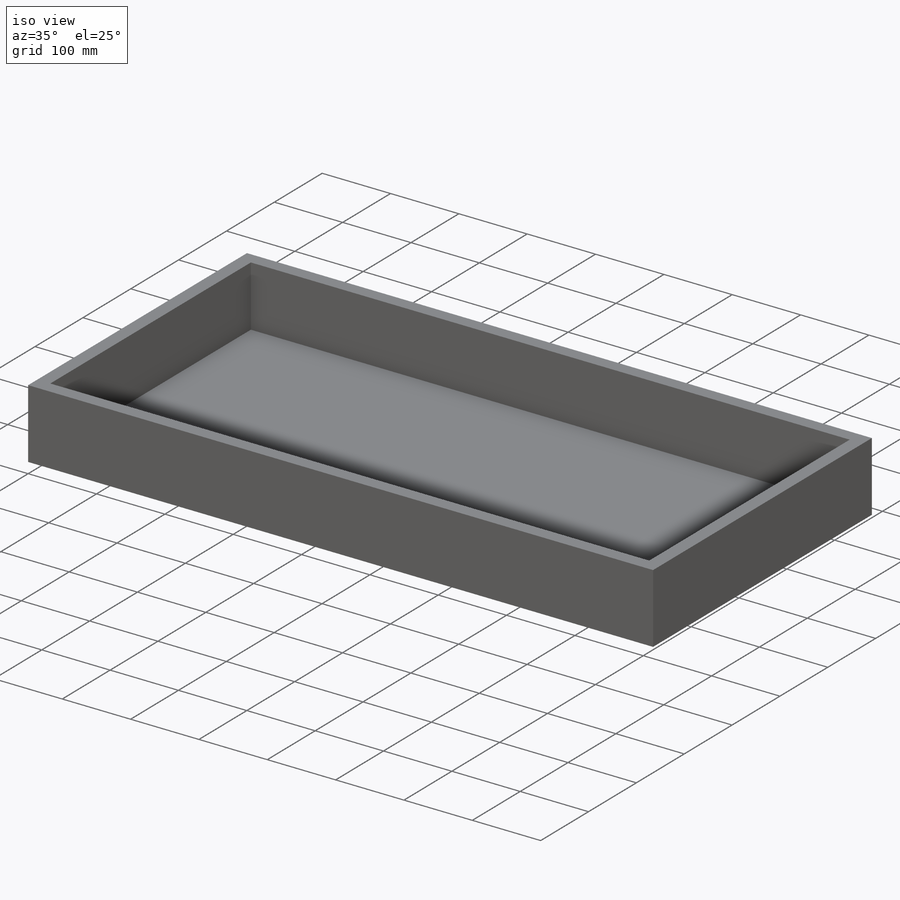
[diagram: iso view]
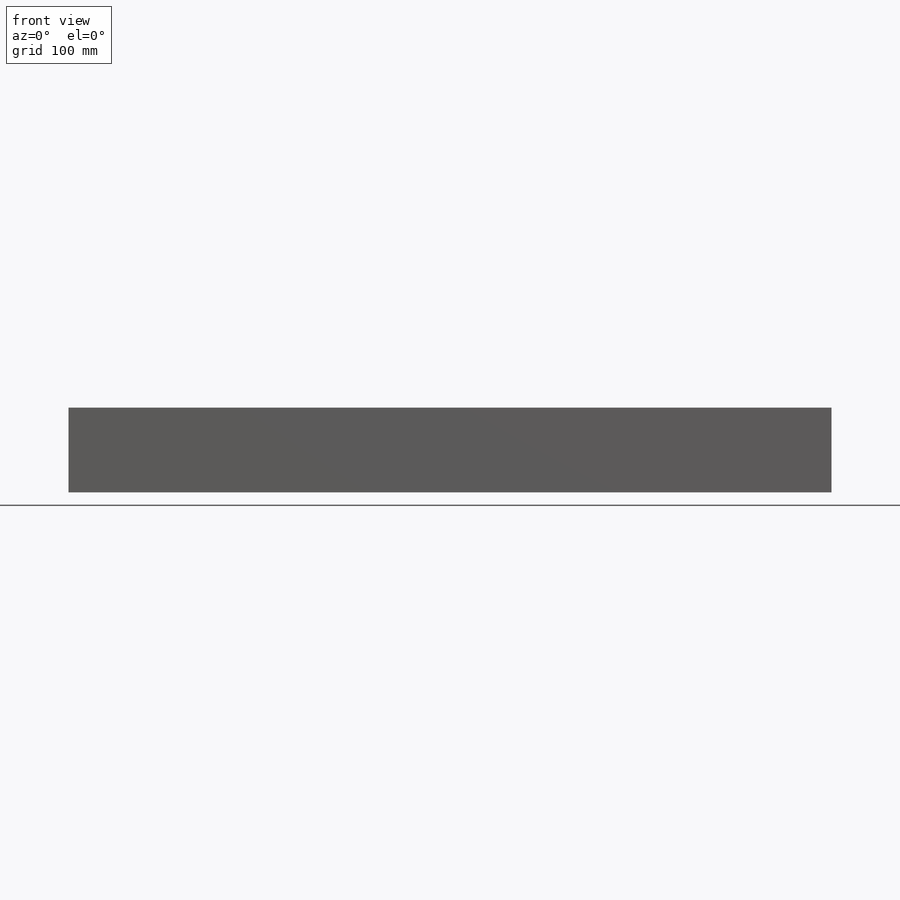
[diagram: front view]
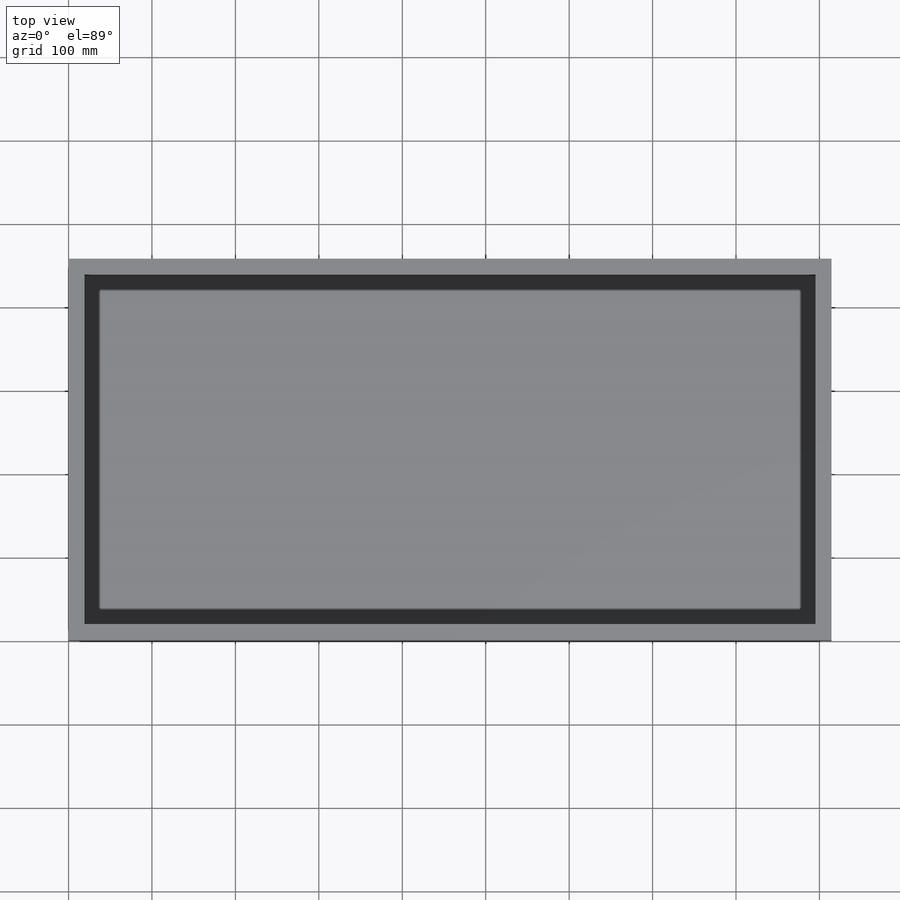
[diagram: top view]
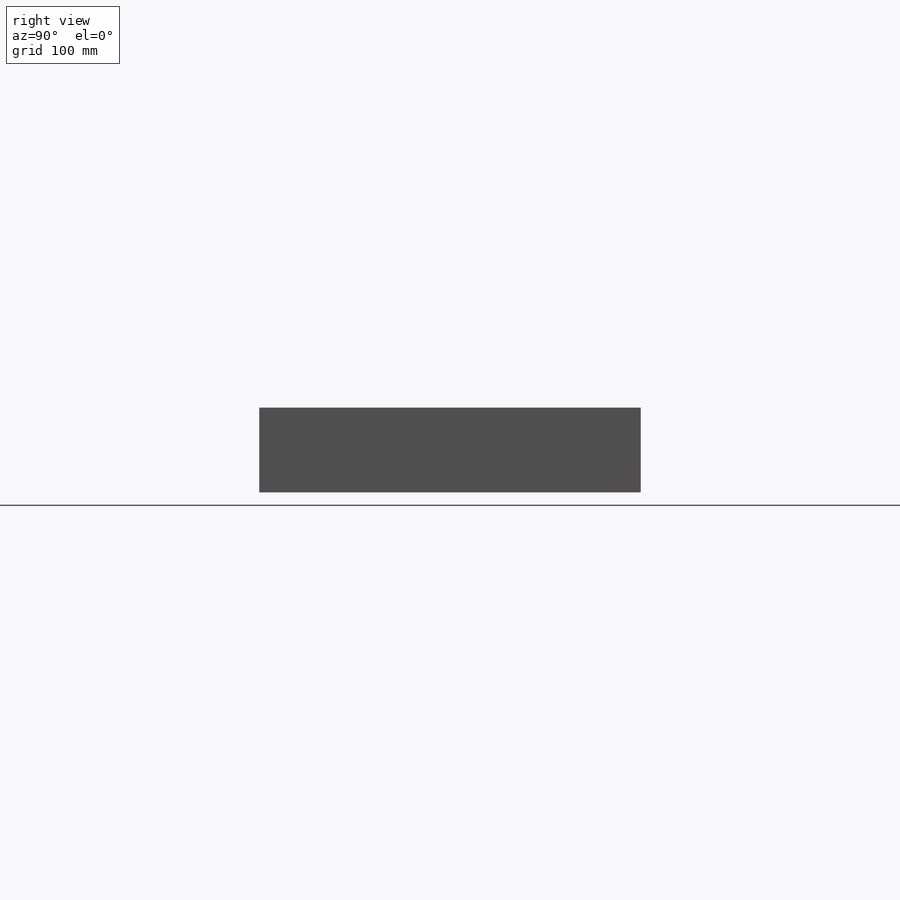
[diagram: right view]
SOLIDWORKS PART (.sldprt)
format: sldprt  version: not decoded by parser v0  size: 547,328 bytes
history: native  units: mm
features: sketch x3, extrude x2, material x1 (+13 scaffold rows collapsed)
feature tree (19):
  scaffold x13  (default folders/planes/origin — collapsed)
  material  "Material <not specified>"
  sketch  "Sketch2"  dims[D1=457.2mm D2=914.4mm]
  extrude  "Boss-Extrude2"  Depth=12.7mm
  sketch  "Sketch1"  dims[c1.D1=~68.99873mm c1.D2=~12.591009mm c2.D1=~352.91341mm c2.D2=~734.497966mm c3.D1=914.4mm c3.D2=457.2mm c3.D3=19.05mm]
  extrude  "Boss-Extrude3"  Depth=88.9mm
  sketch  "Sketch6"  dims[c1.D4=50.8mm c1.D5=50.8mm c1.D1=228.6mm c1.D3=457.2mm c1.D2=76.2mm c2.D3=76.2mm]
decode coverage: 5 of 5 modeling features carry decoded parameters
note: ~ marks probable driven/reference dimensions
note: suppression state not decoded; provenance and decode notes live in map.json
